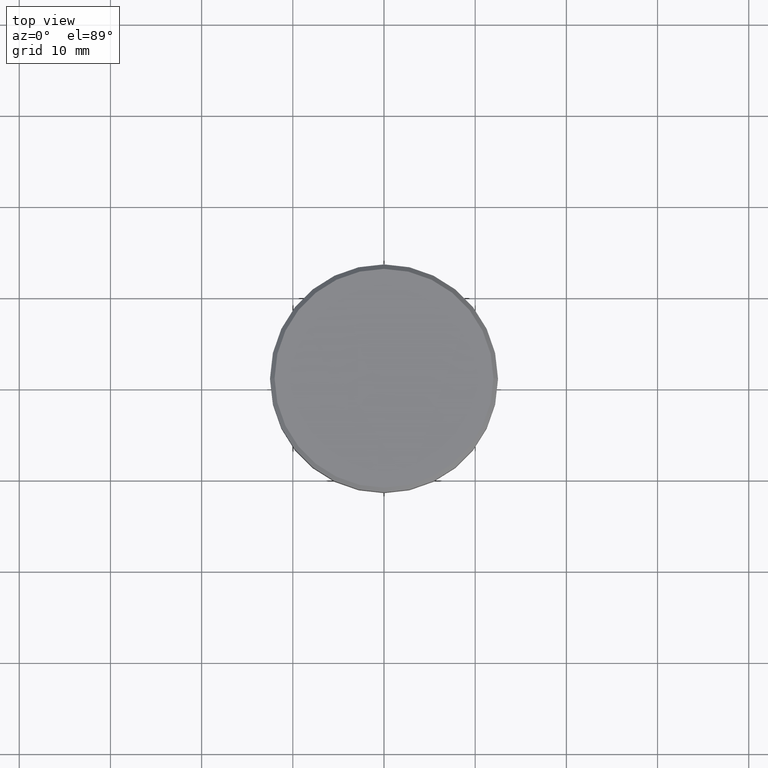
[diagram: clean part render]
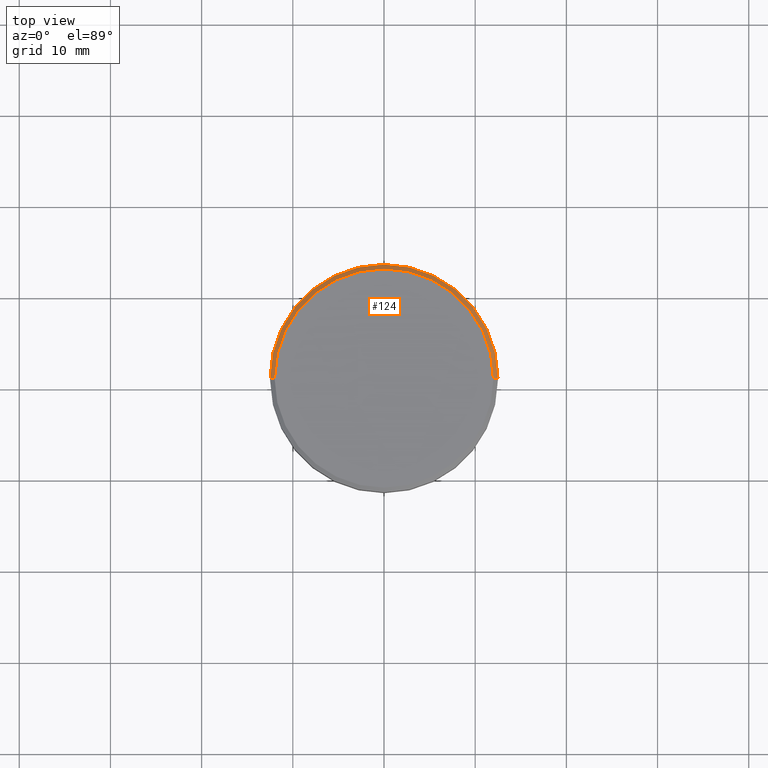
[diagram: same view with one face highlighted and labeled with its STEP entity id]
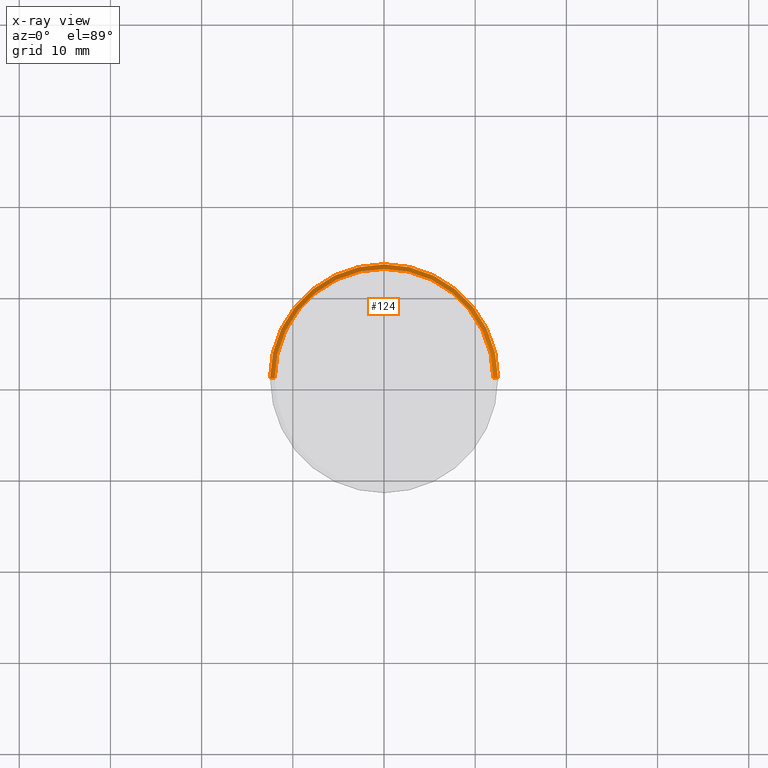
[diagram: x-ray of the same camera — body ghosted, the highlighted face saturated]
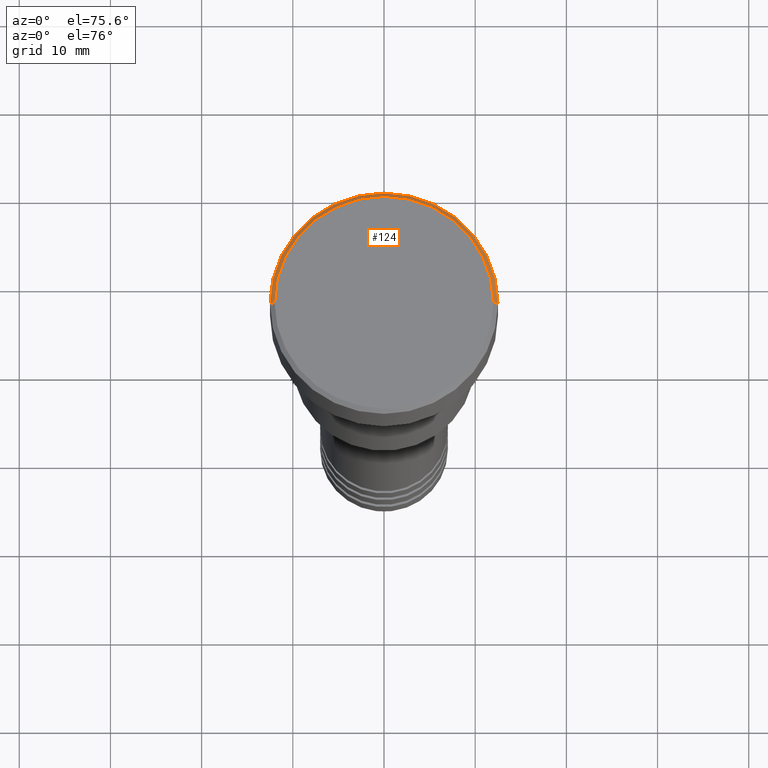
[diagram: same view with one face highlighted and labeled with its STEP entity id]
A machine part, top view. The second image highlights one B-rep face of the part: STEP entity #124.
The next image is the same camera in x-ray: the body ghosted, the highlighted face saturated — about 0% of this face is hidden behind the body in this view.
A second angle (auxiliary view) of the same face is appended — the face is thin or edge-on in the first view.
In plain terms, the highlighted conical surface has half-angle 45 deg.
Its self-contained STEP definition (entity closure, byte-faithful):
#3 = LINE ( 'NONE', #746, #933 ) ;
#45 = AXIS2_PLACEMENT_3D ( 'NONE', #654, #770, #492 ) ;
#58 = VECTOR ( 'NONE', #1033, 1000.000000000000000 ) ;
#82 = AXIS2_PLACEMENT_3D ( 'NONE', #225, #583, #1038 ) ;
#107 = VERTEX_POINT ( 'NONE', #1046 ) ;
#124 = ADVANCED_FACE ( 'NONE', ( #966 ), #856, .T. ) ;
#178 = DIRECTION ( 'NONE',  ( 0.000000000000000000, 0.000000000000000000, -1.000000000000000000 ) ) ;
#195 = VERTEX_POINT ( 'NONE', #323 ) ;
#225 = CARTESIAN_POINT ( 'NONE',  ( 0.000000000000000000, 0.000000000000000000, 0.000000000000000000 ) ) ;
#261 = CARTESIAN_POINT ( 'NONE',  ( 12.00000000000000355, 1.500192328955507734E-15, 0.000000000000000000 ) ) ;
#291 = CIRCLE ( 'NONE', #82, 12.00000000000000355 ) ;
#296 = CARTESIAN_POINT ( 'NONE',  ( 12.00000000000000355, 1.469576158976824342E-15, 0.000000000000000000 ) ) ;
#323 = CARTESIAN_POINT ( 'NONE',  ( 12.50000000000000000, 0.000000000000000000, -0.5000000000000056621 ) ) ;
#324 = VERTEX_POINT ( 'NONE', #261 ) ;
#366 = DIRECTION ( 'NONE',  ( -0.7071067811865414665, 0.000000000000000000, -0.7071067811865536790 ) ) ;
#401 = AXIS2_PLACEMENT_3D ( 'NONE', #845, #178, #1016 ) ;
#443 = ORIENTED_EDGE ( 'NONE', *, *, #838, .F. ) ;
#492 = DIRECTION ( 'NONE',  ( -1.000000000000000000, 0.000000000000000000, 0.000000000000000000 ) ) ;
#583 = DIRECTION ( 'NONE',  ( -0.000000000000000000, -0.000000000000000000, 1.000000000000000000 ) ) ;
#654 = CARTESIAN_POINT ( 'NONE',  ( 0.000000000000000000, 0.000000000000000000, 0.000000000000000000 ) ) ;
#656 = EDGE_CURVE ( 'NONE', #107, #195, #932, .T. ) ;
#711 = EDGE_LOOP ( 'NONE', ( #443, #1129, #749, #817 ) ) ;
#746 = CARTESIAN_POINT ( 'NONE',  ( -12.00000000000000355, 0.000000000000000000, 0.000000000000000000 ) ) ;
#749 = ORIENTED_EDGE ( 'NONE', *, *, #656, .F. ) ;
#770 = DIRECTION ( 'NONE',  ( 0.000000000000000000, 0.000000000000000000, -1.000000000000000000 ) ) ;
#817 = ORIENTED_EDGE ( 'NONE', *, *, #1106, .F. ) ;
#838 = EDGE_CURVE ( 'NONE', #324, #1108, #291, .T. ) ;
#845 = CARTESIAN_POINT ( 'NONE',  ( 0.000000000000000000, 0.000000000000000000, -0.5000000000000056621 ) ) ;
#852 = EDGE_CURVE ( 'NONE', #324, #195, #1117, .T. ) ;
#856 = CONICAL_SURFACE ( 'NONE', #45, 12.00000000000000355, 0.7853981633974396193 ) ;
#932 = CIRCLE ( 'NONE', #401, 12.50000000000000000 ) ;
#933 = VECTOR ( 'NONE', #366, 1000.000000000000000 ) ;
#966 = FACE_OUTER_BOUND ( 'NONE', #711, .T. ) ;
#1014 = CARTESIAN_POINT ( 'NONE',  ( -12.00000000000000355, 0.000000000000000000, 0.000000000000000000 ) ) ;
#1016 = DIRECTION ( 'NONE',  ( 1.000000000000000000, 0.000000000000000000, 0.000000000000000000 ) ) ;
#1033 = DIRECTION ( 'NONE',  ( 0.7071067811865414665, 8.659560562354858902E-17, -0.7071067811865536790 ) ) ;
#1038 = DIRECTION ( 'NONE',  ( 1.000000000000000000, 0.000000000000000000, 0.000000000000000000 ) ) ;
#1046 = CARTESIAN_POINT ( 'NONE',  ( -12.50000000000000000, 1.530808498934191521E-15, -0.5000000000000056621 ) ) ;
#1106 = EDGE_CURVE ( 'NONE', #1108, #107, #3, .T. ) ;
#1108 = VERTEX_POINT ( 'NONE', #1014 ) ;
#1117 = LINE ( 'NONE', #296, #58 ) ;
#1129 = ORIENTED_EDGE ( 'NONE', *, *, #852, .T. ) ;